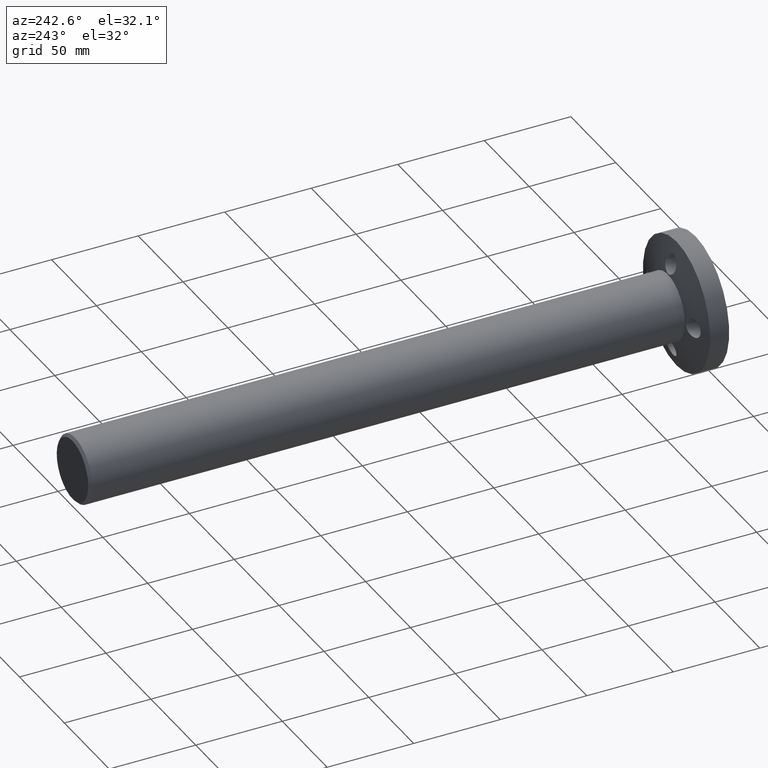
[diagram: clean part render]
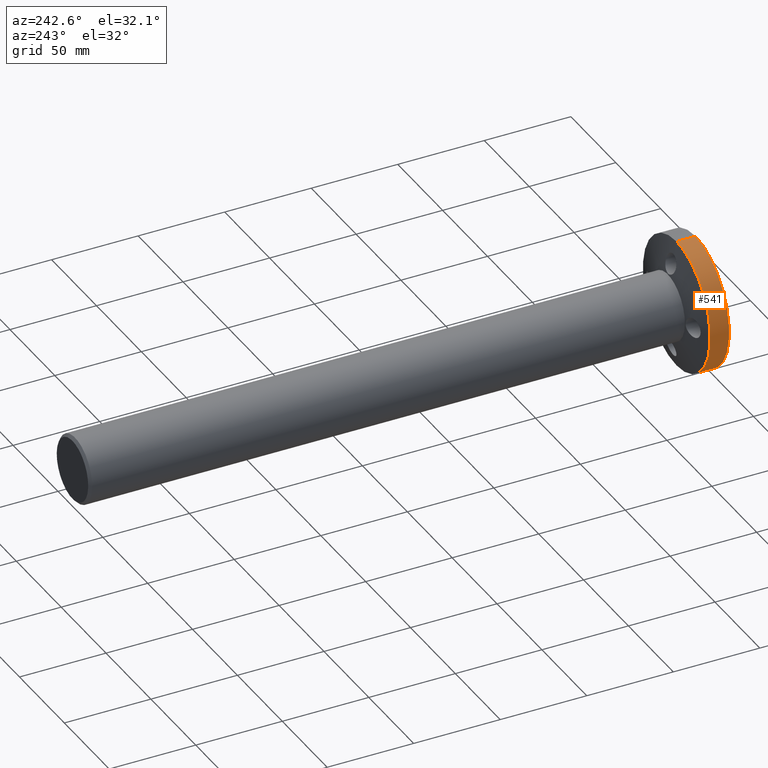
[diagram: same view with one face highlighted and labeled with its STEP entity id]
A machine part, auxiliary view. The second image highlights one B-rep face of the part: STEP entity #541.
In plain terms, the highlighted cylindrical surface (partial cylindrical patch) has radius 37.5 mm, axis along (-0, -1, -0).
Its self-contained STEP definition (entity closure, byte-faithful):
#14 = CARTESIAN_POINT ( 'NONE',  ( -46.05816251671765800, 38.82294354499621400, 34.16964233481589700 ) ) ;
#46 = AXIS2_PLACEMENT_3D ( 'NONE', #1542, #373, #1676 ) ;
#74 = LINE ( 'NONE', #1061, #1183 ) ;
#120 = EDGE_CURVE ( 'NONE', #1561, #349, #734, .T. ) ;
#125 = DIRECTION ( 'NONE',  ( -0.0000000000000000000, -1.000000000000000000, -0.0000000000000000000 ) ) ;
#197 = AXIS2_PLACEMENT_3D ( 'NONE', #1460, #1074, #1475 ) ;
#227 = EDGE_LOOP ( 'NONE', ( #1596, #1477, #1087, #774 ) ) ;
#332 = AXIS2_PLACEMENT_3D ( 'NONE', #726, #1246, #1498 ) ;
#341 = EDGE_CURVE ( 'NONE', #1561, #928, #698, .T. ) ;
#349 = VERTEX_POINT ( 'NONE', #661 ) ;
#373 = DIRECTION ( 'NONE',  ( -0.0000000000000000000, -1.000000000000000000, -0.0000000000000000000 ) ) ;
#541 = ADVANCED_FACE ( 'NONE', ( #1107 ), #1316, .T. ) ;
#634 = VERTEX_POINT ( 'NONE', #713 ) ;
#661 = CARTESIAN_POINT ( 'NONE',  ( -46.05816251671766500, 66.52719886414514900, -40.83035766518411000 ) ) ;
#682 = CARTESIAN_POINT ( 'NONE',  ( -46.05816251671766500, 66.52719886414514900, 34.16964233481590400 ) ) ;
#698 = LINE ( 'NONE', #14, #855 ) ;
#713 = CARTESIAN_POINT ( 'NONE',  ( -46.05816251671766500, 55.52719886414515600, -40.83035766518410300 ) ) ;
#726 = CARTESIAN_POINT ( 'NONE',  ( -46.05816251671766500, 55.52719886414515600, -3.330357665184104500 ) ) ;
#734 = CIRCLE ( 'NONE', #46, 37.50000000000000000 ) ;
#774 = ORIENTED_EDGE ( 'NONE', *, *, #1018, .F. ) ;
#855 = VECTOR ( 'NONE', #125, 1000.000000000000000 ) ;
#928 = VERTEX_POINT ( 'NONE', #1549 ) ;
#1018 = EDGE_CURVE ( 'NONE', #928, #634, #1020, .T. ) ;
#1020 = CIRCLE ( 'NONE', #332, 37.50000000000000000 ) ;
#1061 = CARTESIAN_POINT ( 'NONE',  ( -46.05816251671766500, 38.82294354499621400, -40.83035766518410300 ) ) ;
#1074 = DIRECTION ( 'NONE',  ( -0.0000000000000000000, -1.000000000000000000, -0.0000000000000000000 ) ) ;
#1087 = ORIENTED_EDGE ( 'NONE', *, *, #1557, .T. ) ;
#1107 = FACE_OUTER_BOUND ( 'NONE', #227, .T. ) ;
#1183 = VECTOR ( 'NONE', #1185, 1000.000000000000000 ) ;
#1185 = DIRECTION ( 'NONE',  ( -0.0000000000000000000, -1.000000000000000000, -0.0000000000000000000 ) ) ;
#1246 = DIRECTION ( 'NONE',  ( -0.0000000000000000000, -1.000000000000000000, -0.0000000000000000000 ) ) ;
#1316 = CYLINDRICAL_SURFACE ( 'NONE', #197, 37.50000000000000000 ) ;
#1460 = CARTESIAN_POINT ( 'NONE',  ( -46.05816251671766500, 38.82294354499621400, -3.330357665184104500 ) ) ;
#1475 = DIRECTION ( 'NONE',  ( 0.0000000000000000000, 0.0000000000000000000, -1.000000000000000000 ) ) ;
#1477 = ORIENTED_EDGE ( 'NONE', *, *, #120, .T. ) ;
#1498 = DIRECTION ( 'NONE',  ( 0.0000000000000000000, 0.0000000000000000000, -1.000000000000000000 ) ) ;
#1542 = CARTESIAN_POINT ( 'NONE',  ( -46.05816251671766500, 66.52719886414514900, -3.330357665184104500 ) ) ;
#1549 = CARTESIAN_POINT ( 'NONE',  ( -46.05816251671765800, 55.52719886414515600, 34.16964233481589700 ) ) ;
#1557 = EDGE_CURVE ( 'NONE', #349, #634, #74, .T. ) ;
#1561 = VERTEX_POINT ( 'NONE', #682 ) ;
#1596 = ORIENTED_EDGE ( 'NONE', *, *, #341, .F. ) ;
#1676 = DIRECTION ( 'NONE',  ( 0.0000000000000000000, 0.0000000000000000000, -1.000000000000000000 ) ) ;